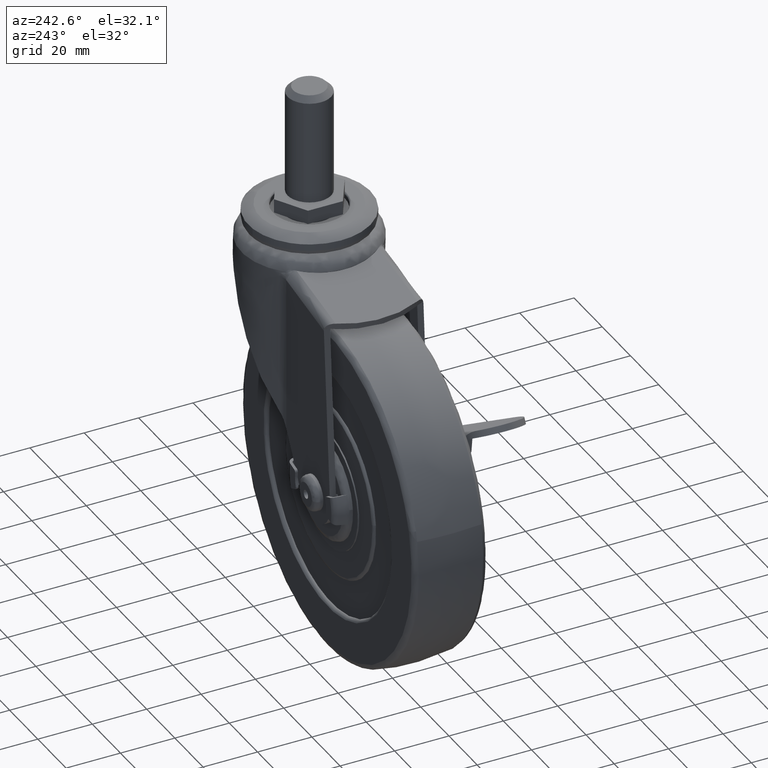
[diagram: clean part render]
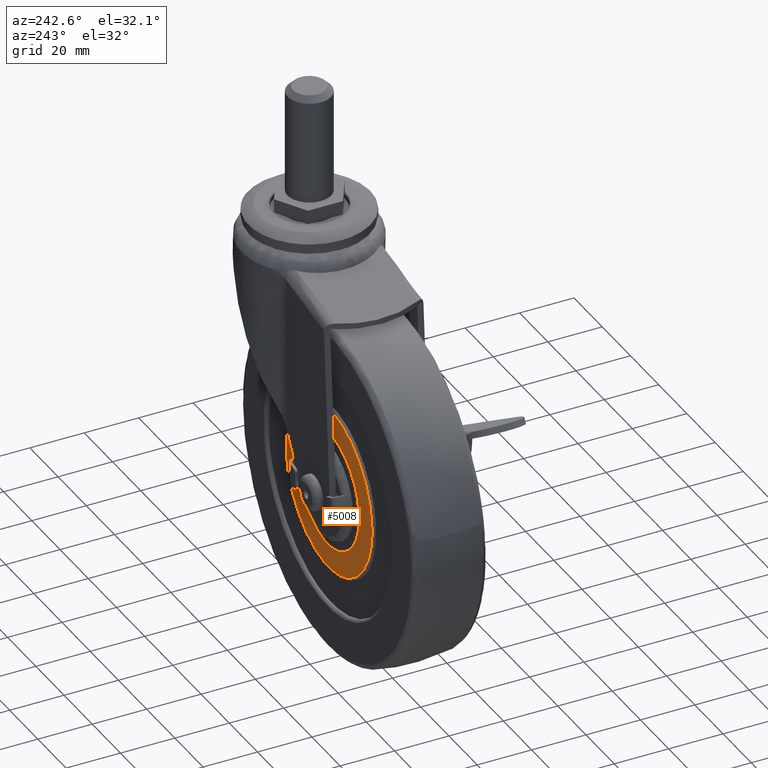
[diagram: same view with one face highlighted and labeled with its STEP entity id]
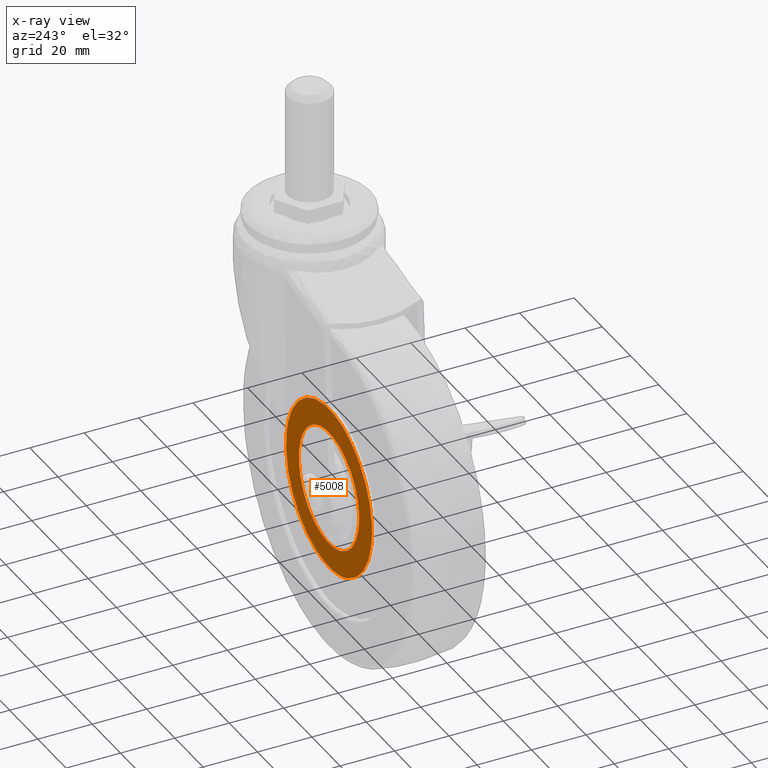
[diagram: x-ray of the same camera — body ghosted, the highlighted face saturated]
A machine part, auxiliary view. The second image highlights one B-rep face of the part: STEP entity #5008.
The next image is the same camera in x-ray: the body ghosted, the highlighted face saturated — about 0% of this face is hidden behind the body in this view.
In plain terms, the highlighted face is a freeform B-spline surface patch.
Its self-contained STEP definition (entity closure, byte-faithful):
#352=CARTESIAN_POINT('',(-14.999457661364721,13.0,-15.263559168719050));
#353=VERTEX_POINT('',#352);
#359=CARTESIAN_POINT('',(-21.399999999999800,13.0,0.000002932029662));
#360=VERTEX_POINT('',#359);
#361=CARTESIAN_POINT('',(-14.999457661364721,13.0,-15.263559168719050));
#362=CARTESIAN_POINT('',(-16.325634368678969,13.000000000000030,-13.961079819587949));
#363=CARTESIAN_POINT('',(-18.029932904474840,12.999999999999970,-11.781100804754979));
#364=CARTESIAN_POINT('',(-19.761878383460399,13.000000000000041,-8.383709649249015));
#365=CARTESIAN_POINT('',(-21.016906995771890,12.999999999999950,-4.779374789719713));
#366=CARTESIAN_POINT('',(-21.400619538477070,13.000000000000041,-1.858820633262735));
#367=CARTESIAN_POINT('',(-21.399999999999800,13.0,0.000002932029662));
#368=B_SPLINE_CURVE_WITH_KNOTS('',3,(#361,#362,#363,#364,#365,#366,#367),.UNSPECIFIED.,.F.,.U.,(4,1,1,1,4),(9.626852E-009,5.576282580887577,8.231655029408287,11.418100124309010,16.994382695587039),.UNSPECIFIED.);
#369=EDGE_CURVE('',#353,#360,#368,.T.);
#371=CARTESIAN_POINT('',(0.0,13.0,21.399999999999999));
#372=VERTEX_POINT('',#371);
#373=CARTESIAN_POINT('',(-21.399999999999800,13.0,0.000002932029662));
#374=CARTESIAN_POINT('',(-21.400067706571029,12.999999999999989,1.138005010372487));
#375=CARTESIAN_POINT('',(-21.197095537594080,13.0,3.676641154321456));
#376=CARTESIAN_POINT('',(-20.300502859001590,13.000000000000020,7.078933589804739));
#377=CARTESIAN_POINT('',(-19.038576661095981,12.999999999999989,9.878573289067827));
#378=CARTESIAN_POINT('',(-17.371672629774370,13.000000000000020,12.660250121063850));
#379=CARTESIAN_POINT('',(-15.216885229985770,13.000000000000050,15.221045673033380));
#380=CARTESIAN_POINT('',(-12.570448984306751,12.999999999999989,17.392571266678761));
#381=CARTESIAN_POINT('',(-10.116677659147530,13.0,18.925416683905159));
#382=CARTESIAN_POINT('',(-7.562964514067444,13.000000000000030,20.095139599072159));
#383=CARTESIAN_POINT('',(-4.114214851466156,12.999999999999920,21.118262830118031));
#384=CARTESIAN_POINT('',(-1.575730954824770,13.000000000000140,21.400310105240411));
#385=CARTESIAN_POINT('',(0.0,13.0,21.399999999999999));
#386=B_SPLINE_CURVE_WITH_KNOTS('',3,(#373,#374,#375,#376,#377,#378,#379,#380,#381,#382,#383,#384,#385),.UNSPECIFIED.,.F.,.U.,(4,1,1,1,1,1,1,1,1,1,4),(0.000000039289752,3.414026954214599,7.615949482921522,10.504784914736859,12.605754323103090,17.332850626523740,20.484269206725660,22.847856929873672,25.999296578722191,28.888123753702029,33.615250660976862),.UNSPECIFIED.);
#387=EDGE_CURVE('',#360,#372,#386,.T.);
#389=CARTESIAN_POINT('',(21.399999999999800,13.0,-0.000002932029960));
#390=VERTEX_POINT('',#389);
#391=CARTESIAN_POINT('',(0.0,13.0,21.399999999999999));
#392=CARTESIAN_POINT('',(1.138005275656784,12.999999999999970,21.400084954696830));
#393=CARTESIAN_POINT('',(3.326447752769460,13.000000000000020,21.224983438403140));
#394=CARTESIAN_POINT('',(6.913398833045680,13.000000000000011,20.373392144435520));
#395=CARTESIAN_POINT('',(10.382767881834431,12.999999999999950,18.860924352453260));
#396=CARTESIAN_POINT('',(13.353143527013970,13.000000000000011,16.822785473186041));
#397=CARTESIAN_POINT('',(15.923481713214940,13.000000000000030,14.435166002566520));
#398=CARTESIAN_POINT('',(17.925788127443230,12.999999999999989,11.869484851565700));
#399=CARTESIAN_POINT('',(19.557222576977640,13.0,8.861575301676790));
#400=CARTESIAN_POINT('',(20.535866232061839,13.000000000000041,6.228715709477639));
#401=CARTESIAN_POINT('',(21.226547655950839,12.999999999999909,3.238904391496968));
#402=CARTESIAN_POINT('',(21.400106353006340,13.000000000000171,1.225545212545627));
#403=CARTESIAN_POINT('',(21.399999999999800,13.0,-0.000002932029960));
#404=B_SPLINE_CURVE_WITH_KNOTS('',3,(#391,#392,#393,#394,#395,#396,#397,#398,#399,#400,#401,#402,#403),.UNSPECIFIED.,.F.,.U.,(4,1,1,1,1,1,1,1,1,1,4),(0.000000038272894,3.414027288740709,6.565464832064922,11.030028716417799,14.706713962328831,17.332852333285420,21.534754386865711,24.423581845669990,27.575021804294639,29.938609759569129,33.615253966078527),.UNSPECIFIED.);
#405=EDGE_CURVE('',#372,#390,#404,.T.);
#407=CARTESIAN_POINT('',(15.263560210833511,13.0,-14.999458692172910));
#408=VERTEX_POINT('',#407);
#409=CARTESIAN_POINT('',(21.399999999999800,13.0,-0.000002932029960));
#410=CARTESIAN_POINT('',(21.400102926308740,12.999999999999970,-1.211936319460262));
#411=CARTESIAN_POINT('',(21.200921266994332,13.000000000000041,-3.549210633421421));
#412=CARTESIAN_POINT('',(20.452593304739910,13.0,-6.494891456850794));
#413=CARTESIAN_POINT('',(19.306365274271389,12.999999999999989,-9.396819156418472));
#414=CARTESIAN_POINT('',(17.720107995340911,12.999999999999959,-12.194643968677671));
#415=CARTESIAN_POINT('',(16.113081652956581,13.000000000000080,-14.135113932958420));
#416=CARTESIAN_POINT('',(15.263560210833511,13.0,-14.999458692172910));
#417=B_SPLINE_CURVE_WITH_KNOTS('',3,(#409,#410,#411,#412,#413,#414,#415,#416),.UNSPECIFIED.,.F.,.U.,(4,1,1,1,1,4),(0.000000013408762,3.635810087393189,7.011943133967737,9.089528120647108,12.985059620194630,16.620869694203670),.UNSPECIFIED.);
#418=EDGE_CURVE('',#390,#408,#417,.T.);
#455=CARTESIAN_POINT('',(0.0,13.0,-21.399999999999999));
#456=VERTEX_POINT('',#455);
#457=CARTESIAN_POINT('',(15.263560210833511,13.0,-14.999458692172910));
#458=CARTESIAN_POINT('',(13.961130773251860,12.999999999999989,-16.325680219725712));
#459=CARTESIAN_POINT('',(11.499774720767920,13.000000000000020,-18.249840637240180));
#460=CARTESIAN_POINT('',(7.733663919913461,12.999999999999989,-20.053622609896721));
#461=CARTESIAN_POINT('',(4.071447192083089,13.000000000000041,-21.128076781806790));
#462=CARTESIAN_POINT('',(1.504726785921652,12.999999999999970,-21.400261603127849));
#463=CARTESIAN_POINT('',(0.0,13.0,-21.399999999999999));
#464=B_SPLINE_CURVE_WITH_KNOTS('',3,(#457,#458,#459,#460,#461,#462,#463),.UNSPECIFIED.,.F.,.U.,(4,1,1,1,4),(9.608424E-009,5.576281808200834,9.293799852838644,12.480248031687729,16.994380340718660),.UNSPECIFIED.);
#465=EDGE_CURVE('',#408,#456,#464,.T.);
#467=CARTESIAN_POINT('',(0.0,13.0,-21.399999999999999));
#468=CARTESIAN_POINT('',(-1.211928266029976,13.0,-21.400083823462449));
#469=CARTESIAN_POINT('',(-3.722362186585740,13.0,-21.186247595898440));
#470=CARTESIAN_POINT('',(-6.829720525556891,13.0,-20.356571741797850));
#471=CARTESIAN_POINT('',(-9.702934610102119,12.999999999999940,-19.140160917126138));
#472=CARTESIAN_POINT('',(-12.328439438149919,13.000000000000179,-17.609227184583361));
#473=CARTESIAN_POINT('',(-14.135119630011751,12.999999999999890,-16.113091271098970));
#474=CARTESIAN_POINT('',(-14.999457661364721,13.0,-15.263559168719050));
#475=B_SPLINE_CURVE_WITH_KNOTS('',3,(#467,#468,#469,#470,#471,#472,#473,#474),.UNSPECIFIED.,.F.,.U.,(4,1,1,1,1,4),(0.000000013390931,3.635810603227947,7.531342655457971,9.608927936886927,12.985061462455690,16.620872052268059),.UNSPECIFIED.);
#476=EDGE_CURVE('',#456,#353,#475,.T.);
#1786=CARTESIAN_POINT('',(-10.775710004774499,13.0,-28.533034846577991));
#1787=VERTEX_POINT('',#1786);
#1798=CARTESIAN_POINT('',(0.0,13.0,-30.500000000000000));
#1799=VERTEX_POINT('',#1798);
#1800=CARTESIAN_POINT('',(0.0,13.0,-30.500000000000000));
#1801=CARTESIAN_POINT('',(-1.950323998518710,13.000000000000030,-30.500257168994619));
#1802=CARTESIAN_POINT('',(-5.621381857333601,12.999999999999980,-30.146546478138930));
#1803=CARTESIAN_POINT('',(-9.165869616853678,13.000000000000041,-29.141155312815371));
#1804=CARTESIAN_POINT('',(-10.775710004774499,13.0,-28.533034846577991));
#1805=B_SPLINE_CURVE_WITH_KNOTS('',3,(#1800,#1801,#1802,#1803,#1804),.UNSPECIFIED.,.F.,.U.,(4,1,4),(5.667399E-009,5.850923066887897,11.013514414937781),.UNSPECIFIED.);
#1806=EDGE_CURVE('',#1799,#1787,#1805,.T.);
#1808=CARTESIAN_POINT('',(30.499999999999901,13.0,-0.000002466075636));
#1809=VERTEX_POINT('',#1808);
#1810=CARTESIAN_POINT('',(30.499999999999901,13.0,-0.000002466075636));
#1811=CARTESIAN_POINT('',(30.500093360842339,13.000000000000011,-1.621921909326550));
#1812=CARTESIAN_POINT('',(30.250619554225480,12.999999999999970,-4.740975636133493));
#1813=CARTESIAN_POINT('',(29.123384086708452,13.000000000000030,-9.487975198848769));
#1814=CARTESIAN_POINT('',(27.230499244227019,13.000000000000020,-14.057866946588570));
#1815=CARTESIAN_POINT('',(24.297831338989401,13.000000000000011,-18.720786569734749));
#1816=CARTESIAN_POINT('',(20.427360696781310,13.000000000000041,-22.913268350008760));
#1817=CARTESIAN_POINT('',(15.967888396595050,13.000000000000121,-26.157141163559430));
#1818=CARTESIAN_POINT('',(11.988706056314919,12.999999999999980,-28.129413261395751));
#1819=CARTESIAN_POINT('',(8.040108764007650,13.000000000000121,-29.515042367104890));
#1820=CARTESIAN_POINT('',(4.179598963789347,12.999999999999741,-30.319948718595860));
#1821=CARTESIAN_POINT('',(1.247630181367744,13.000000000000091,-30.500017056158079));
#1822=CARTESIAN_POINT('',(0.0,13.0,-30.500000000000000));
#1823=B_SPLINE_CURVE_WITH_KNOTS('',3,(#1810,#1811,#1812,#1813,#1814,#1815,#1816,#1817,#1818,#1819,#1820,#1821,#1822),.UNSPECIFIED.,.F.,.U.,(4,1,1,1,1,1,1,1,1,1,4),(0.000000117826893,4.865750637190651,9.357280165125225,14.597386169374101,19.650338358938448,25.826125749430489,31.627634953008300,36.119168415244552,39.113504940887502,44.166454368156877,47.909361733091679),.UNSPECIFIED.);
#1824=EDGE_CURVE('',#1809,#1799,#1823,.T.);
#1826=CARTESIAN_POINT('',(0.0,13.0,30.500000000000000));
#1827=VERTEX_POINT('',#1826);
#1828=CARTESIAN_POINT('',(0.0,13.0,30.500000000000000));
#1829=CARTESIAN_POINT('',(2.121012669119192,13.000000000000030,30.500349014727220));
#1830=CARTESIAN_POINT('',(5.614238677698086,12.999999999999920,30.134027075802130));
#1831=CARTESIAN_POINT('',(10.908023700684771,13.000000000000190,28.634125984682310));
#1832=CARTESIAN_POINT('',(15.214550091587970,12.999999999999520,26.597377841408001));
#1833=CARTESIAN_POINT('',(18.859487366050391,13.000000000000799,24.063289075661181));
#1834=CARTESIAN_POINT('',(21.659637840592769,12.999999999998970,21.571973717509291));
#1835=CARTESIAN_POINT('',(23.944970401897280,13.000000000000760,19.003344559256458));
#1836=CARTESIAN_POINT('',(26.380300050278230,12.999999999999639,15.523043595388311));
#1837=CARTESIAN_POINT('',(28.267460049009809,13.000000000000069,11.773935996581161));
#1838=CARTESIAN_POINT('',(30.018374654789032,13.000000000000210,6.362599289853955));
#1839=CARTESIAN_POINT('',(30.500705255103881,12.999999999999719,2.557741422590952));
#1840=CARTESIAN_POINT('',(30.499999999999901,13.0,-0.000002466075636));
#1841=B_SPLINE_CURVE_WITH_KNOTS('',3,(#1828,#1829,#1830,#1831,#1832,#1833,#1834,#1835,#1836,#1837,#1838,#1839,#1840),.UNSPECIFIED.,.F.,.U.,(4,1,1,1,1,1,1,1,1,1,4),(0.000000117608785,6.362957902717874,10.480172656063420,16.468851499122000,20.586071112260299,23.767607649115799,27.697589895247280,30.879066025528100,36.493463884046207,40.236410037372302,47.909364512938083),.UNSPECIFIED.);
#1842=EDGE_CURVE('',#1827,#1809,#1841,.T.);
#1844=CARTESIAN_POINT('',(-30.500000007239180,13.0,3.546847E-015));
#1845=VERTEX_POINT('',#1844);
#1846=CARTESIAN_POINT('',(-30.500000007239180,13.0,3.546847E-015));
#1847=CARTESIAN_POINT('',(-30.500111777635269,13.000000000000011,1.684311925708270));
#1848=CARTESIAN_POINT('',(-30.215081435078851,12.999999999999980,5.115272435182034));
#1849=CARTESIAN_POINT('',(-28.843805702922669,13.000000000000011,10.451831912127670));
#1850=CARTESIAN_POINT('',(-26.633010882481230,12.999999999999980,15.163179048390820));
#1851=CARTESIAN_POINT('',(-23.670846924035629,13.000000000000060,19.424279314034109));
#1852=CARTESIAN_POINT('',(-20.648698085504890,12.999999999999840,22.598546152351549));
#1853=CARTESIAN_POINT('',(-17.445987016306930,13.000000000000250,25.097800143433961));
#1854=CARTESIAN_POINT('',(-14.408936164311481,12.999999999999771,26.956370128528061));
#1855=CARTESIAN_POINT('',(-11.179210648780680,13.000000000000760,28.459701330898952));
#1856=CARTESIAN_POINT('',(-6.362648873492356,12.999999999999041,30.018479815882330));
#1857=CARTESIAN_POINT('',(-2.557729754171674,13.000000000000560,30.500677266469289));
#1858=CARTESIAN_POINT('',(0.0,13.0,30.500000000000000));
#1859=B_SPLINE_CURVE_WITH_KNOTS('',3,(#1846,#1847,#1848,#1849,#1850,#1851,#1852,#1853,#1854,#1855,#1856,#1857,#1858),.UNSPECIFIED.,.F.,.U.,(4,1,1,1,1,1,1,1,1,1,4),(0.000000117716638,5.052929767212632,10.293016693387081,16.468851023930590,20.586070519087230,25.826126503933381,29.569059576138422,32.750538670206737,36.493462831278848,40.236408876649712,47.909363130970469),.UNSPECIFIED.);
#1860=EDGE_CURVE('',#1845,#1827,#1859,.T.);
#1963=CARTESIAN_POINT('',(-10.775710004774499,13.0,-28.533034846577991));
#1964=CARTESIAN_POINT('',(-11.854345408090220,13.0,-28.125691426381749));
#1965=CARTESIAN_POINT('',(-14.317225441397790,12.999999999999980,-27.032365665252080));
#1966=CARTESIAN_POINT('',(-17.767173333724571,13.000000000000030,-24.916665950258999));
#1967=CARTESIAN_POINT('',(-21.400646941983169,13.0,-21.906453161667230));
#1968=CARTESIAN_POINT('',(-24.336653286513950,12.999999999999940,-18.578968145927629));
#1969=CARTESIAN_POINT('',(-26.941212003201549,12.999999999999989,-14.531289900989700));
#1970=CARTESIAN_POINT('',(-28.731529337321749,13.000000000000149,-10.578477438643130));
#1971=CARTESIAN_POINT('',(-30.138845001414381,12.999999999999719,-5.572670357353037));
#1972=CARTESIAN_POINT('',(-30.500364933524210,13.000000000000361,-2.113857275305839));
#1973=CARTESIAN_POINT('',(-30.500000007239180,13.0,3.546847E-015));
#1974=B_SPLINE_CURVE_WITH_KNOTS('',3,(#1963,#1964,#1965,#1966,#1967,#1968,#1969,#1970,#1971,#1972,#1973),.UNSPECIFIED.,.F.,.U.,(4,1,1,1,1,1,1,1,4),(0.000000039980080,3.458982554033007,8.070976377924843,12.106476739276850,17.583256019718529,21.330435879856260,26.518938873475349,30.554438491931538,36.895925498293273),.UNSPECIFIED.);
#1975=EDGE_CURVE('',#1787,#1845,#1974,.T.);
#4988=CARTESIAN_POINT('',(-33.546949889370943,13.0,33.546949881770168));
#4989=CARTESIAN_POINT('',(-33.546949889370943,13.0,-33.546951517917662));
#4990=CARTESIAN_POINT('',(33.546951518279137,13.0,33.546949881770168));
#4991=CARTESIAN_POINT('',(33.546951518279137,13.0,-33.546951517917662));
#4992=B_SPLINE_SURFACE_WITH_KNOTS('',1,1,((#4988,#4990),(#4989,#4991)),.UNSPECIFIED.,.F.,.F.,.U.,(2,2),(2,2),(0.0,67.093901399687837),(0.0,67.093901407650080),.UNSPECIFIED.);
#4993=ORIENTED_EDGE('',*,*,#1806,.T.);
#4994=ORIENTED_EDGE('',*,*,#1975,.T.);
#4995=ORIENTED_EDGE('',*,*,#1860,.T.);
#4996=ORIENTED_EDGE('',*,*,#1842,.T.);
#4997=ORIENTED_EDGE('',*,*,#1824,.T.);
#4998=EDGE_LOOP('',(#4993,#4994,#4995,#4996,#4997));
#4999=FACE_OUTER_BOUND('',#4998,.T.);
#5000=ORIENTED_EDGE('',*,*,#387,.F.);
#5001=ORIENTED_EDGE('',*,*,#369,.F.);
#5002=ORIENTED_EDGE('',*,*,#476,.F.);
#5003=ORIENTED_EDGE('',*,*,#465,.F.);
#5004=ORIENTED_EDGE('',*,*,#418,.F.);
#5005=ORIENTED_EDGE('',*,*,#405,.F.);
#5006=EDGE_LOOP('',(#5000,#5001,#5002,#5003,#5004,#5005));
#5007=FACE_BOUND('',#5006,.T.);
#5008=ADVANCED_FACE('',(#4999,#5007),#4992,.F.);